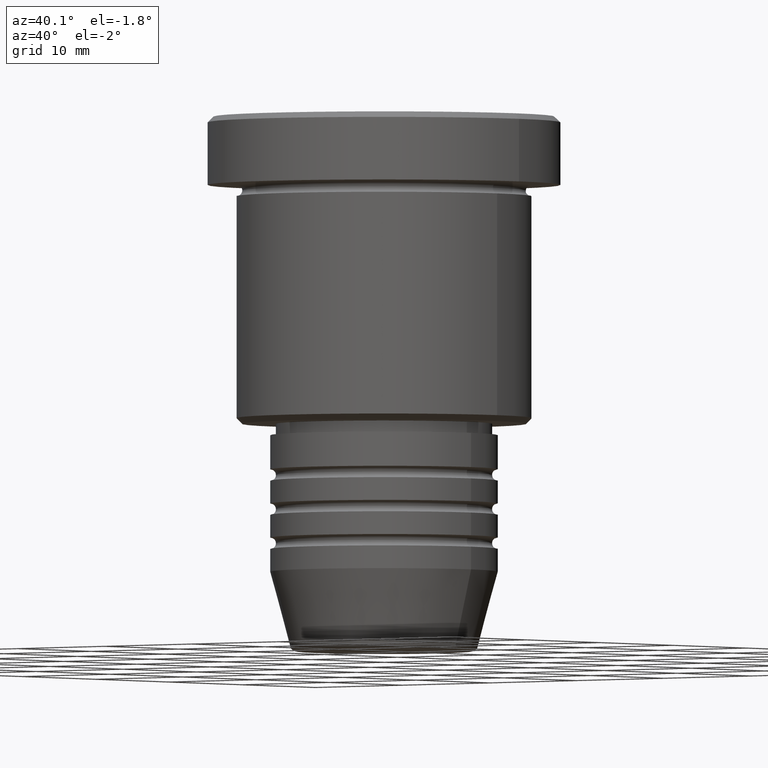
[diagram: clean part render]
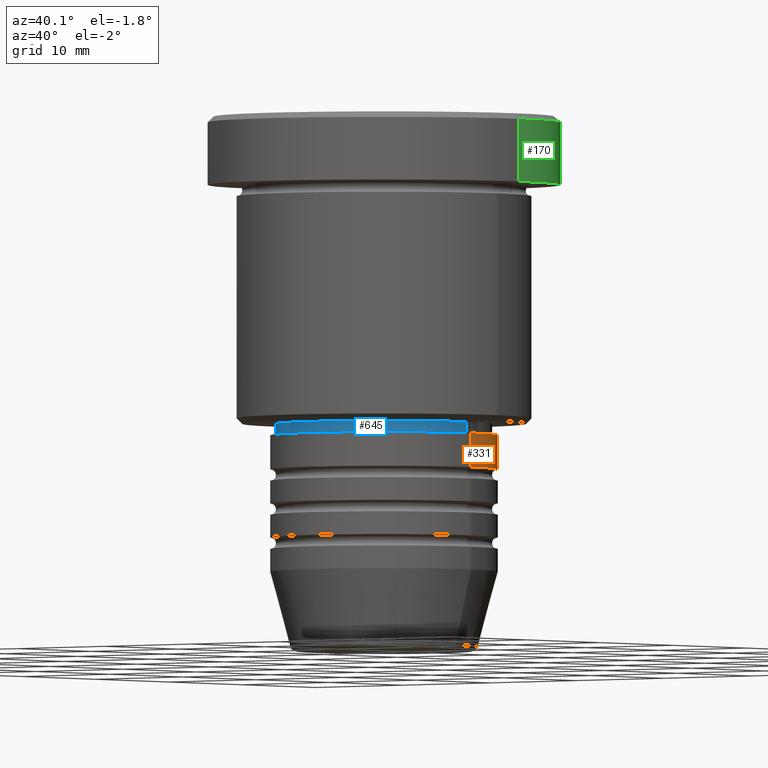
[diagram: same view with three faces highlighted in distinct colors, each labeled with its STEP entity id]
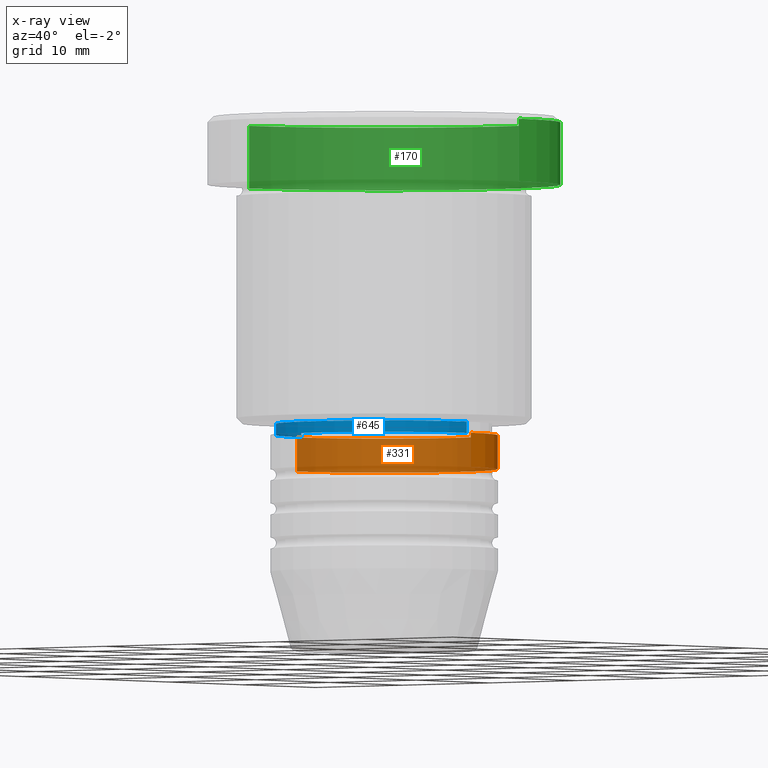
[diagram: x-ray of the same camera — body ghosted, the three highlighted faces saturated]
A machine part, auxiliary view with three faces highlighted in distinct colors.
The next image is the same camera in x-ray (body ghosted, the three faces saturated) — at least one of them is partly hidden behind the body in this view.
Their STEP definitions:

[orange] entity #331 — the highlighted cylindrical surface (partial cylindrical patch) has radius 10 mm, axis along (-0, -0, 1).
#25 = DIRECTION ( 'NONE',  ( -0.000000000000000000, -0.000000000000000000, 1.000000000000000000 ) ) ;
#32 = AXIS2_PLACEMENT_3D ( 'NONE', #1031, #25, #1115 ) ;
#45 = ORIENTED_EDGE ( 'NONE', *, *, #713, .F. ) ;
#64 = EDGE_CURVE ( 'NONE', #316, #374, #145, .T. ) ;
#140 = DIRECTION ( 'NONE',  ( -0.000000000000000000, -0.000000000000000000, 1.000000000000000000 ) ) ;
#145 = CIRCLE ( 'NONE', #275, 10.00000000000000000 ) ;
#147 = CIRCLE ( 'NONE', #32, 10.00000000000000000 ) ;
#210 = CARTESIAN_POINT ( 'NONE',  ( 0.000000000000000000, 0.000000000000000000, -28.00000000000000355 ) ) ;
#275 = AXIS2_PLACEMENT_3D ( 'NONE', #210, #652, #568 ) ;
#297 = VECTOR ( 'NONE', #140, 1000.000000000000000 ) ;
#316 = VERTEX_POINT ( 'NONE', #1095 ) ;
#331 = ADVANCED_FACE ( 'NONE', ( #1075 ), #437, .T. ) ;
#336 = CARTESIAN_POINT ( 'NONE',  ( -10.00000000000000000, 1.224646799147353256E-15, 0.000000000000000000 ) ) ;
#343 = CARTESIAN_POINT ( 'NONE',  ( 0.000000000000000000, 0.000000000000000000, 0.000000000000000000 ) ) ;
#374 = VERTEX_POINT ( 'NONE', #639 ) ;
#410 = CARTESIAN_POINT ( 'NONE',  ( 10.00000000000000000, 0.000000000000000000, 0.000000000000000000 ) ) ;
#411 = VERTEX_POINT ( 'NONE', #785 ) ;
#417 = EDGE_LOOP ( 'NONE', ( #834, #892, #886, #45 ) ) ;
#433 = DIRECTION ( 'NONE',  ( -0.000000000000000000, -0.000000000000000000, 1.000000000000000000 ) ) ;
#437 = CYLINDRICAL_SURFACE ( 'NONE', #500, 10.00000000000000000 ) ;
#470 = EDGE_CURVE ( 'NONE', #411, #1061, #147, .T. ) ;
#497 = LINE ( 'NONE', #410, #581 ) ;
#500 = AXIS2_PLACEMENT_3D ( 'NONE', #343, #433, #999 ) ;
#568 = DIRECTION ( 'NONE',  ( 1.000000000000000000, 0.000000000000000000, 0.000000000000000000 ) ) ;
#579 = LINE ( 'NONE', #336, #297 ) ;
#581 = VECTOR ( 'NONE', #692, 1000.000000000000000 ) ;
#639 = CARTESIAN_POINT ( 'NONE',  ( -10.00000000000000000, 1.224646799147353256E-15, -28.00000000000000355 ) ) ;
#652 = DIRECTION ( 'NONE',  ( -0.000000000000000000, -0.000000000000000000, 1.000000000000000000 ) ) ;
#692 = DIRECTION ( 'NONE',  ( -0.000000000000000000, -0.000000000000000000, 1.000000000000000000 ) ) ;
#697 = EDGE_CURVE ( 'NONE', #1061, #374, #579, .T. ) ;
#713 = EDGE_CURVE ( 'NONE', #411, #316, #497, .T. ) ;
#785 = CARTESIAN_POINT ( 'NONE',  ( 10.00000000000000000, 0.000000000000000000, -30.99999999999997868 ) ) ;
#834 = ORIENTED_EDGE ( 'NONE', *, *, #470, .T. ) ;
#886 = ORIENTED_EDGE ( 'NONE', *, *, #64, .F. ) ;
#892 = ORIENTED_EDGE ( 'NONE', *, *, #697, .T. ) ;
#917 = CARTESIAN_POINT ( 'NONE',  ( -10.00000000000000000, 1.224646799147353256E-15, -30.99999999999997868 ) ) ;
#999 = DIRECTION ( 'NONE',  ( 1.000000000000000000, 0.000000000000000000, 0.000000000000000000 ) ) ;
#1031 = CARTESIAN_POINT ( 'NONE',  ( 0.000000000000000000, 0.000000000000000000, -30.99999999999997868 ) ) ;
#1061 = VERTEX_POINT ( 'NONE', #917 ) ;
#1075 = FACE_OUTER_BOUND ( 'NONE', #417, .T. ) ;
#1095 = CARTESIAN_POINT ( 'NONE',  ( 10.00000000000000000, 0.000000000000000000, -28.00000000000000355 ) ) ;
#1115 = DIRECTION ( 'NONE',  ( 1.000000000000000000, 0.000000000000000000, 0.000000000000000000 ) ) ;

[blue] entity #645 — the highlighted cylindrical surface (partial cylindrical patch) has radius 9.5 mm, axis along (-0, -0, 1).
#15 = LINE ( 'NONE', #448, #519 ) ;
#21 = EDGE_LOOP ( 'NONE', ( #758, #390, #159, #495 ) ) ;
#57 = DIRECTION ( 'NONE',  ( -0.000000000000000000, -0.000000000000000000, 1.000000000000000000 ) ) ;
#67 = VERTEX_POINT ( 'NONE', #373 ) ;
#82 = CARTESIAN_POINT ( 'NONE',  ( -9.500000000000000000, 1.163414459189985485E-15, -27.00000000000000000 ) ) ;
#136 = CARTESIAN_POINT ( 'NONE',  ( -9.500000000000000000, 1.163414459189985485E-15, -28.00000000000001066 ) ) ;
#154 = EDGE_CURVE ( 'NONE', #718, #810, #15, .T. ) ;
#158 = CARTESIAN_POINT ( 'NONE',  ( 0.000000000000000000, 0.000000000000000000, -28.00000000000001066 ) ) ;
#159 = ORIENTED_EDGE ( 'NONE', *, *, #871, .T. ) ;
#214 = EDGE_CURVE ( 'NONE', #718, #755, #998, .T. ) ;
#222 = AXIS2_PLACEMENT_3D ( 'NONE', #987, #1080, #978 ) ;
#267 = CARTESIAN_POINT ( 'NONE',  ( 9.500000000000000000, 0.000000000000000000, 0.000000000000000000 ) ) ;
#373 = CARTESIAN_POINT ( 'NONE',  ( 9.500000000000000000, 0.000000000000000000, -27.00000000000000000 ) ) ;
#390 = ORIENTED_EDGE ( 'NONE', *, *, #214, .T. ) ;
#405 = DIRECTION ( 'NONE',  ( 1.000000000000000000, 0.000000000000000000, 0.000000000000000000 ) ) ;
#407 = VECTOR ( 'NONE', #630, 1000.000000000000000 ) ;
#423 = AXIS2_PLACEMENT_3D ( 'NONE', #775, #57, #955 ) ;
#428 = LINE ( 'NONE', #267, #407 ) ;
#448 = CARTESIAN_POINT ( 'NONE',  ( -9.500000000000000000, 1.163414459189985485E-15, 0.000000000000000000 ) ) ;
#495 = ORIENTED_EDGE ( 'NONE', *, *, #839, .F. ) ;
#499 = DIRECTION ( 'NONE',  ( -0.000000000000000000, -0.000000000000000000, 1.000000000000000000 ) ) ;
#519 = VECTOR ( 'NONE', #735, 1000.000000000000000 ) ;
#630 = DIRECTION ( 'NONE',  ( -0.000000000000000000, -0.000000000000000000, 1.000000000000000000 ) ) ;
#645 = ADVANCED_FACE ( 'NONE', ( #945 ), #880, .T. ) ;
#718 = VERTEX_POINT ( 'NONE', #136 ) ;
#735 = DIRECTION ( 'NONE',  ( -0.000000000000000000, -0.000000000000000000, 1.000000000000000000 ) ) ;
#755 = VERTEX_POINT ( 'NONE', #1045 ) ;
#758 = ORIENTED_EDGE ( 'NONE', *, *, #154, .F. ) ;
#775 = CARTESIAN_POINT ( 'NONE',  ( 0.000000000000000000, 0.000000000000000000, 0.000000000000000000 ) ) ;
#810 = VERTEX_POINT ( 'NONE', #82 ) ;
#839 = EDGE_CURVE ( 'NONE', #810, #67, #890, .T. ) ;
#871 = EDGE_CURVE ( 'NONE', #755, #67, #428, .T. ) ;
#880 = CYLINDRICAL_SURFACE ( 'NONE', #423, 9.500000000000000000 ) ;
#890 = CIRCLE ( 'NONE', #222, 9.500000000000000000 ) ;
#904 = AXIS2_PLACEMENT_3D ( 'NONE', #158, #499, #405 ) ;
#945 = FACE_OUTER_BOUND ( 'NONE', #21, .T. ) ;
#955 = DIRECTION ( 'NONE',  ( 1.000000000000000000, 0.000000000000000000, 0.000000000000000000 ) ) ;
#978 = DIRECTION ( 'NONE',  ( 1.000000000000000000, 0.000000000000000000, 0.000000000000000000 ) ) ;
#987 = CARTESIAN_POINT ( 'NONE',  ( 0.000000000000000000, 0.000000000000000000, -27.00000000000000000 ) ) ;
#998 = CIRCLE ( 'NONE', #904, 9.500000000000000000 ) ;
#1045 = CARTESIAN_POINT ( 'NONE',  ( 9.500000000000000000, 0.000000000000000000, -28.00000000000001066 ) ) ;
#1080 = DIRECTION ( 'NONE',  ( -0.000000000000000000, -0.000000000000000000, 1.000000000000000000 ) ) ;

[green] entity #170 — the highlighted cylindrical surface (partial cylindrical patch) has radius 15.5 mm, axis along (-0, -0, 1).
#3 = EDGE_CURVE ( 'NONE', #66, #1041, #31, .T. ) ;
#11 = AXIS2_PLACEMENT_3D ( 'NONE', #1010, #201, #561 ) ;
#28 = CARTESIAN_POINT ( 'NONE',  ( 0.000000000000000000, 0.000000000000000000, -0.5000000000000057732 ) ) ;
#31 = CIRCLE ( 'NONE', #183, 15.50000000000000000 ) ;
#66 = VERTEX_POINT ( 'NONE', #911 ) ;
#97 = CARTESIAN_POINT ( 'NONE',  ( 15.50000000000000000, 0.000000000000000000, -5.999999999999995559 ) ) ;
#108 = ORIENTED_EDGE ( 'NONE', *, *, #662, .F. ) ;
#126 = CARTESIAN_POINT ( 'NONE',  ( 15.50000000000000000, 0.000000000000000000, -0.5000000000000057732 ) ) ;
#138 = VERTEX_POINT ( 'NONE', #97 ) ;
#143 = LINE ( 'NONE', #850, #1178 ) ;
#148 = DIRECTION ( 'NONE',  ( 1.000000000000000000, 0.000000000000000000, 0.000000000000000000 ) ) ;
#170 = ADVANCED_FACE ( 'NONE', ( #456 ), #286, .T. ) ;
#183 = AXIS2_PLACEMENT_3D ( 'NONE', #28, #384, #148 ) ;
#188 = LINE ( 'NONE', #1164, #907 ) ;
#201 = DIRECTION ( 'NONE',  ( -0.000000000000000000, -0.000000000000000000, 1.000000000000000000 ) ) ;
#208 = ORIENTED_EDGE ( 'NONE', *, *, #3, .T. ) ;
#286 = CYLINDRICAL_SURFACE ( 'NONE', #11, 15.50000000000000000 ) ;
#353 = CIRCLE ( 'NONE', #728, 15.50000000000000000 ) ;
#384 = DIRECTION ( 'NONE',  ( 0.000000000000000000, 0.000000000000000000, -1.000000000000000000 ) ) ;
#415 = EDGE_CURVE ( 'NONE', #831, #66, #188, .T. ) ;
#418 = DIRECTION ( 'NONE',  ( -0.000000000000000000, -0.000000000000000000, 1.000000000000000000 ) ) ;
#456 = FACE_OUTER_BOUND ( 'NONE', #1021, .T. ) ;
#549 = CARTESIAN_POINT ( 'NONE',  ( -15.50000000000000000, 1.898202538678397557E-15, -5.999999999999995559 ) ) ;
#561 = DIRECTION ( 'NONE',  ( 1.000000000000000000, 0.000000000000000000, 0.000000000000000000 ) ) ;
#625 = CARTESIAN_POINT ( 'NONE',  ( 0.000000000000000000, 0.000000000000000000, -5.999999999999995559 ) ) ;
#662 = EDGE_CURVE ( 'NONE', #138, #1041, #143, .T. ) ;
#675 = ORIENTED_EDGE ( 'NONE', *, *, #415, .T. ) ;
#728 = AXIS2_PLACEMENT_3D ( 'NONE', #625, #1072, #991 ) ;
#831 = VERTEX_POINT ( 'NONE', #549 ) ;
#850 = CARTESIAN_POINT ( 'NONE',  ( 15.50000000000000000, 0.000000000000000000, 0.000000000000000000 ) ) ;
#882 = EDGE_CURVE ( 'NONE', #138, #831, #353, .T. ) ;
#907 = VECTOR ( 'NONE', #1168, 1000.000000000000000 ) ;
#911 = CARTESIAN_POINT ( 'NONE',  ( -15.50000000000000000, 1.898202538678397557E-15, -0.5000000000000057732 ) ) ;
#956 = ORIENTED_EDGE ( 'NONE', *, *, #882, .T. ) ;
#991 = DIRECTION ( 'NONE',  ( 1.000000000000000000, 0.000000000000000000, 0.000000000000000000 ) ) ;
#1010 = CARTESIAN_POINT ( 'NONE',  ( 0.000000000000000000, 0.000000000000000000, 0.000000000000000000 ) ) ;
#1021 = EDGE_LOOP ( 'NONE', ( #956, #675, #208, #108 ) ) ;
#1041 = VERTEX_POINT ( 'NONE', #126 ) ;
#1072 = DIRECTION ( 'NONE',  ( -0.000000000000000000, -0.000000000000000000, 1.000000000000000000 ) ) ;
#1164 = CARTESIAN_POINT ( 'NONE',  ( -15.50000000000000000, 1.898202538678397557E-15, 0.000000000000000000 ) ) ;
#1168 = DIRECTION ( 'NONE',  ( -0.000000000000000000, -0.000000000000000000, 1.000000000000000000 ) ) ;
#1178 = VECTOR ( 'NONE', #418, 1000.000000000000000 ) ;